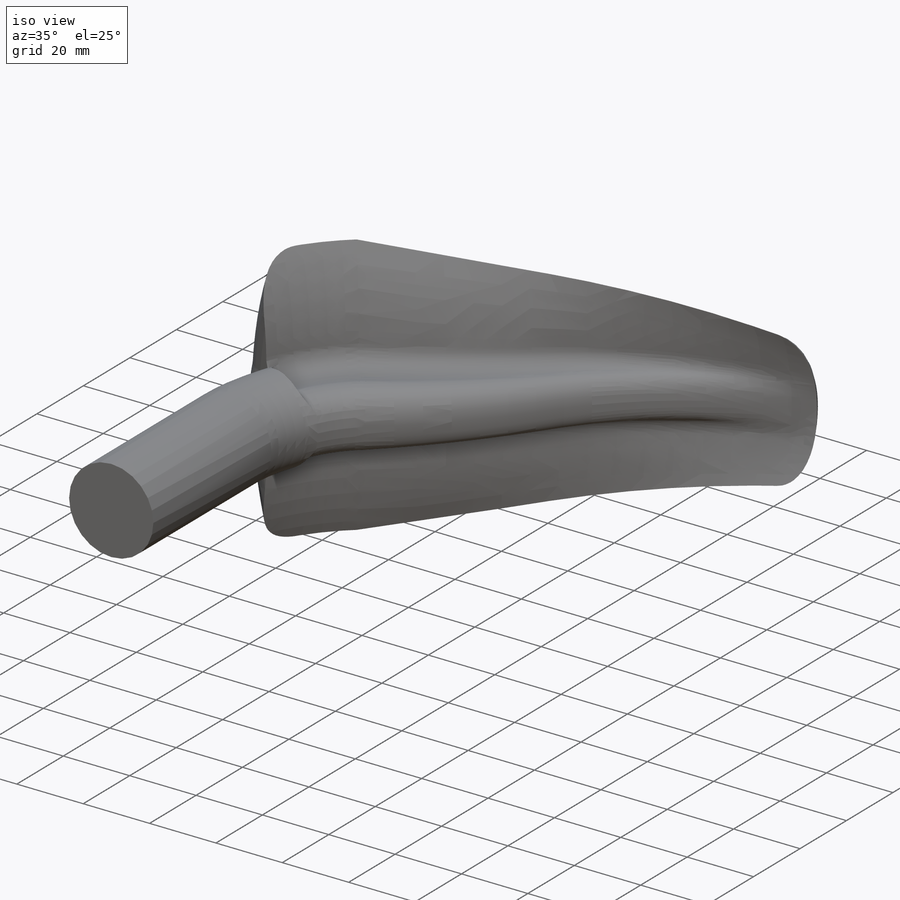
[diagram: iso view]
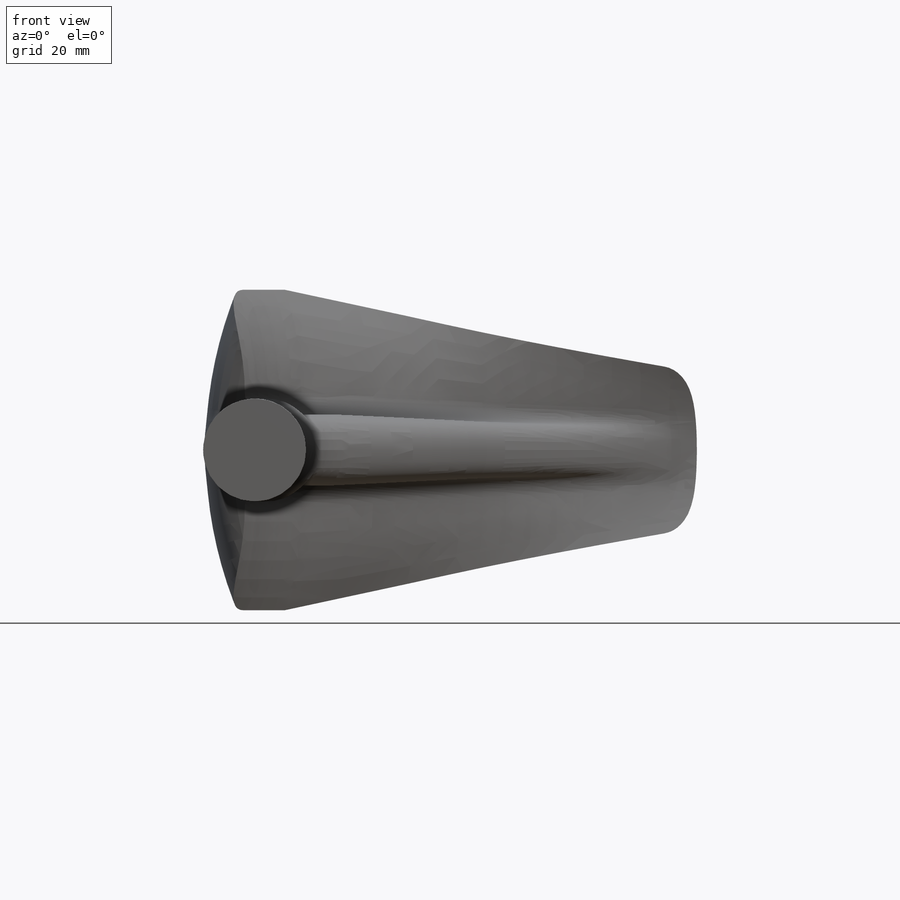
[diagram: front view]
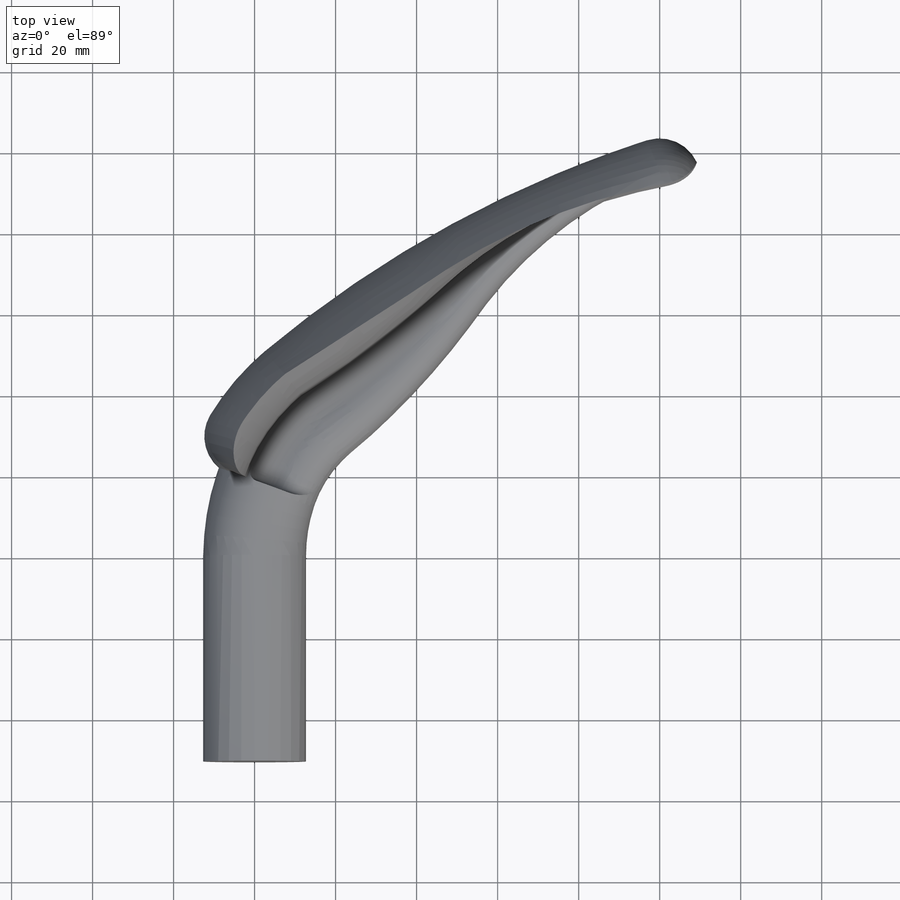
[diagram: top view]
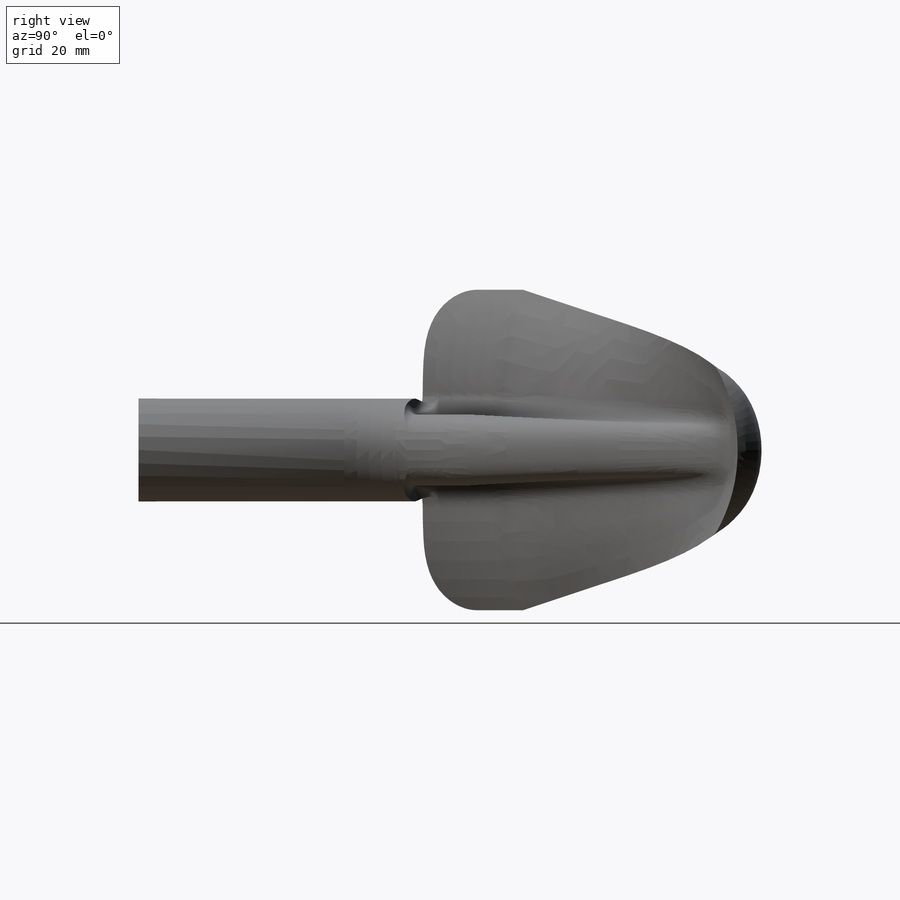
[diagram: right view]
SOLIDWORKS PART (.sldprt)
format: sldprt  version: not decoded by parser v0  size: 408,576 bytes
history: native  units: mm
features: sketch x6, fillet x3, revolve x2, plane x2, material x1, extrude x1 (+13 scaffold rows collapsed)
feature tree (28):
  scaffold x13  (default folders/planes/origin — collapsed)
  material  "Material <not specified>"
  sketch  "Sketch1"  dims[D1=25.4mm]
  extrude  "Boss-Extrude1"  Depth=50.8mm
  sketch  "Sketch2"  dims[D1=50.8mm]
  revolve  "Revolve1"  Angle=20deg
  sketch  "Sketch3"  dims[c1.D6=101.6mm c1.D1=8.89mm c1.D2=3.81mm c1.D3=8.89mm c1.D4=6.35mm c1.D5=25.4mm c2.D6=~39.556076mm c2.D7=38.1mm]
  revolve  "Revolve2"  Angle=30deg
  fillet  "Fillet1"  Radius=10.16mm
  fillet  "Fillet2"  Radius=2.54mm
  sketch  "Sketch4"
  sketch  "Sketch5"  dims[c1.D1=~306.477761mm c2.D1=35.0deg c2.D2=106.68mm c2.D3=55.88mm c2.D4=8.89mm c2.D5=34.29mm c2.D6=31.75mm]
  plane  "Plane1"
  plane  "Plane2"
  sketch  "Sketch6"  dims[D2=20.32mm D1=38.1mm]
  fillet  "Fillet3"  Radius=10.16mm
decode coverage: 11 of 12 modeling features carry decoded parameters
note: ~ marks probable driven/reference dimensions
note: suppression state not decoded; provenance and decode notes live in map.json
